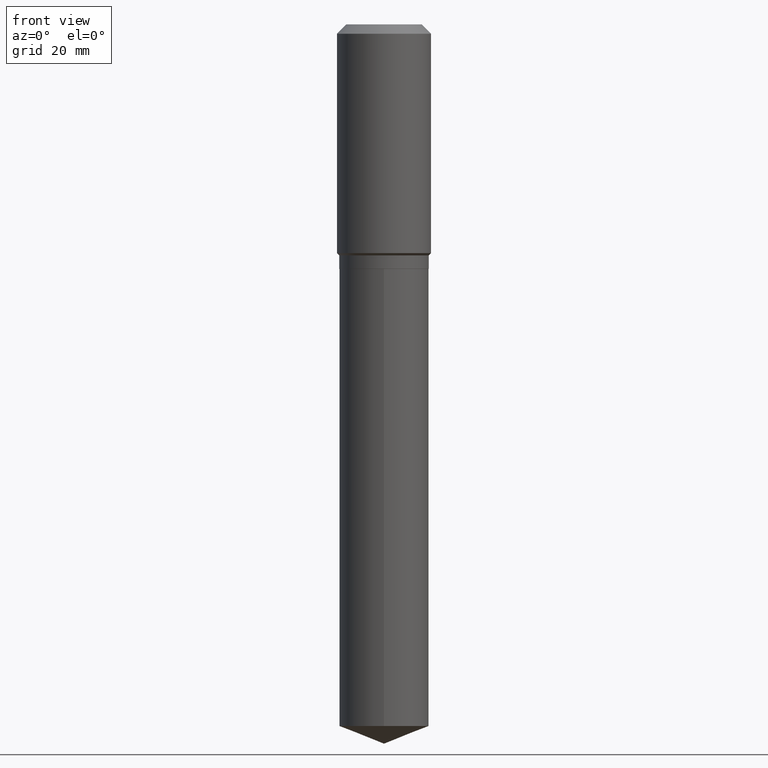
[diagram: clean part render]
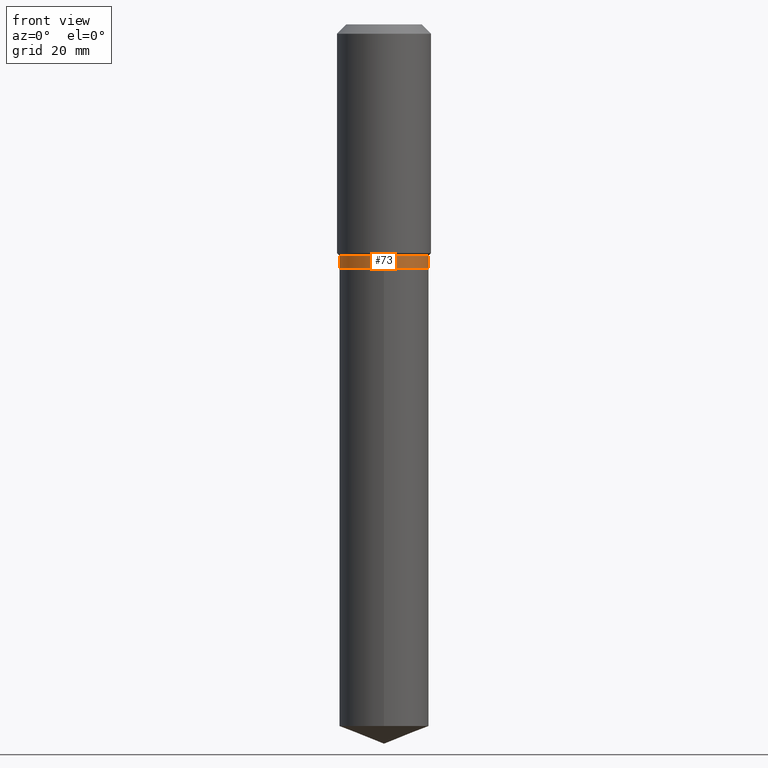
[diagram: same view with one face highlighted and labeled with its STEP entity id]
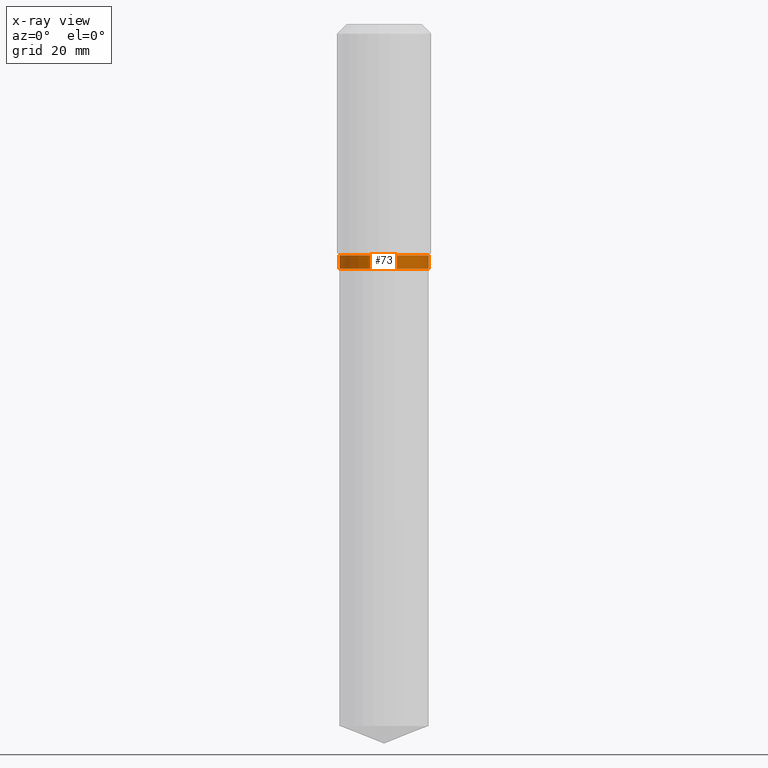
[diagram: x-ray of the same camera — body ghosted, the highlighted face saturated]
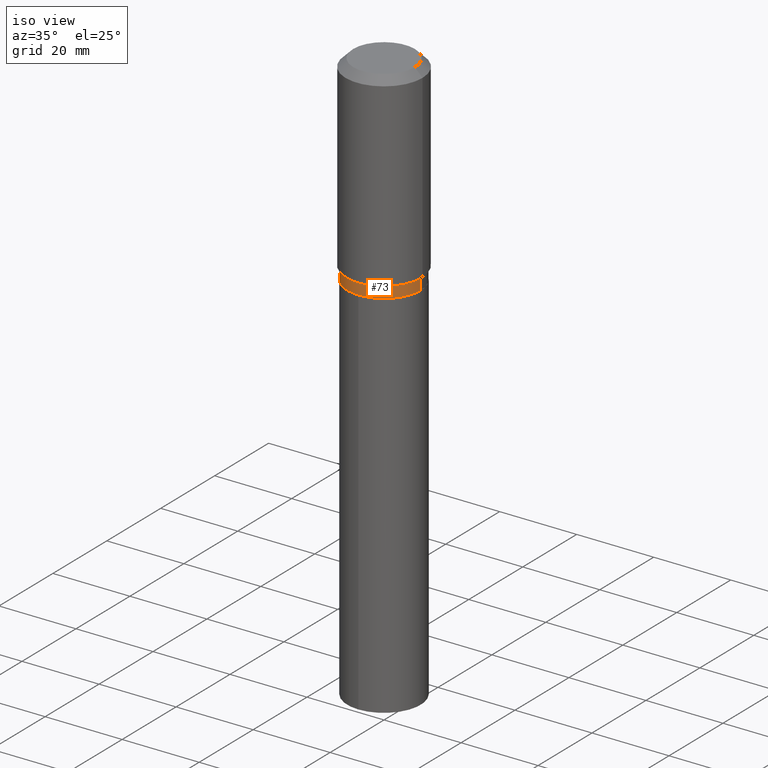
[diagram: same view with one face highlighted and labeled with its STEP entity id]
A machine part, front view. The second image highlights one B-rep face of the part: STEP entity #73.
The next image is the same camera in x-ray: the body ghosted, the highlighted face saturated — about 0% of this face is hidden behind the body in this view.
A second angle (iso view) of the same face is appended — the face is thin or edge-on in the first view.
In plain terms, the highlighted cylindrical surface (partial cylindrical patch) has radius 9.525 mm, axis along (-0, 0, 1).
Its self-contained STEP definition (entity closure, byte-faithful):
#11 = CARTESIAN_POINT ( 'NONE',  ( 4.732226686848858615E-29, -6.756365538795372113E-15, -1.935100000000000264 ) ) ;
#31 = EDGE_CURVE ( 'NONE', #48, #217, #90, .T. ) ;
#32 = DIRECTION ( 'NONE',  ( -2.445468806185136597E-29, 3.491481338843145583E-15, 1.000000000000000000 ) ) ;
#48 = VERTEX_POINT ( 'NONE', #359 ) ;
#65 = VECTOR ( 'NONE', #276, 39.37007874015748143 ) ;
#73 = ADVANCED_FACE ( 'NONE', ( #393 ), #230, .T. ) ;
#75 = ORIENTED_EDGE ( 'NONE', *, *, #31, .F. ) ;
#84 = CIRCLE ( 'NONE', #327, 0.3749999999999999445 ) ;
#87 = DIRECTION ( 'NONE',  ( -2.445468806185136597E-29, 3.491481338843145583E-15, 1.000000000000000000 ) ) ;
#88 = VERTEX_POINT ( 'NONE', #317 ) ;
#90 = LINE ( 'NONE', #153, #65 ) ;
#96 = EDGE_CURVE ( 'NONE', #217, #486, #84, .T. ) ;
#98 = AXIS2_PLACEMENT_3D ( 'NONE', #120, #87, #236 ) ;
#103 = AXIS2_PLACEMENT_3D ( 'NONE', #281, #32, #438 ) ;
#120 = CARTESIAN_POINT ( 'NONE',  ( 0.000000000000000000, 0.000000000000000000, 0.000000000000000000 ) ) ;
#128 = CARTESIAN_POINT ( 'NONE',  ( 0.3749999999999999445, -9.374976542927722130E-15, -1.935100000000000264 ) ) ;
#150 = EDGE_LOOP ( 'NONE', ( #75, #270, #329, #405 ) ) ;
#153 = CARTESIAN_POINT ( 'NONE',  ( -0.3749999999999999445, 2.664535259100375303E-15, -1.844600658845589318E-29 ) ) ;
#181 = DIRECTION ( 'NONE',  ( -2.445468806185136877E-29, 3.491481338843145188E-15, 1.000000000000000000 ) ) ;
#186 = CARTESIAN_POINT ( 'NONE',  ( -0.3749999999999999445, -4.287353234670213494E-15, -1.935100000000000264 ) ) ;
#193 = VECTOR ( 'NONE', #181, 39.37007874015748143 ) ;
#217 = VERTEX_POINT ( 'NONE', #186 ) ;
#227 = CARTESIAN_POINT ( 'NONE',  ( 0.3749999999999999445, -2.618611004132349622E-15, 1.828566290923475642E-29 ) ) ;
#230 = CYLINDRICAL_SURFACE ( 'NONE', #98, 0.3749999999999999445 ) ;
#236 = DIRECTION ( 'NONE',  ( 1.000000000000000000, -6.982962677686266711E-15, 4.876176775795935793E-29 ) ) ;
#270 = ORIENTED_EDGE ( 'NONE', *, *, #437, .T. ) ;
#271 = DIRECTION ( 'NONE',  ( -2.445468806185136597E-29, 3.491481338843145583E-15, 1.000000000000000000 ) ) ;
#276 = DIRECTION ( 'NONE',  ( -2.445468806185136877E-29, 3.491481338843145188E-15, 1.000000000000000000 ) ) ;
#281 = CARTESIAN_POINT ( 'NONE',  ( 5.006119193141594017E-29, -7.147411448745804690E-15, -2.047100000000000364 ) ) ;
#317 = CARTESIAN_POINT ( 'NONE',  ( 0.3749999999999998890, -9.766022452878153129E-15, -2.047100000000000364 ) ) ;
#327 = AXIS2_PLACEMENT_3D ( 'NONE', #11, #271, #490 ) ;
#329 = ORIENTED_EDGE ( 'NONE', *, *, #428, .T. ) ;
#351 = LINE ( 'NONE', #227, #193 ) ;
#359 = CARTESIAN_POINT ( 'NONE',  ( -0.3749999999999998890, -4.287353234670213494E-15, -2.047100000000000364 ) ) ;
#373 = CIRCLE ( 'NONE', #103, 0.3749999999999998890 ) ;
#393 = FACE_OUTER_BOUND ( 'NONE', #150, .T. ) ;
#405 = ORIENTED_EDGE ( 'NONE', *, *, #96, .F. ) ;
#428 = EDGE_CURVE ( 'NONE', #88, #486, #351, .T. ) ;
#437 = EDGE_CURVE ( 'NONE', #48, #88, #373, .T. ) ;
#438 = DIRECTION ( 'NONE',  ( 1.000000000000000000, -6.982962677686264344E-15, 0.000000000000000000 ) ) ;
#486 = VERTEX_POINT ( 'NONE', #128 ) ;
#490 = DIRECTION ( 'NONE',  ( 1.000000000000000000, -6.982962677686269077E-15, 0.000000000000000000 ) ) ;